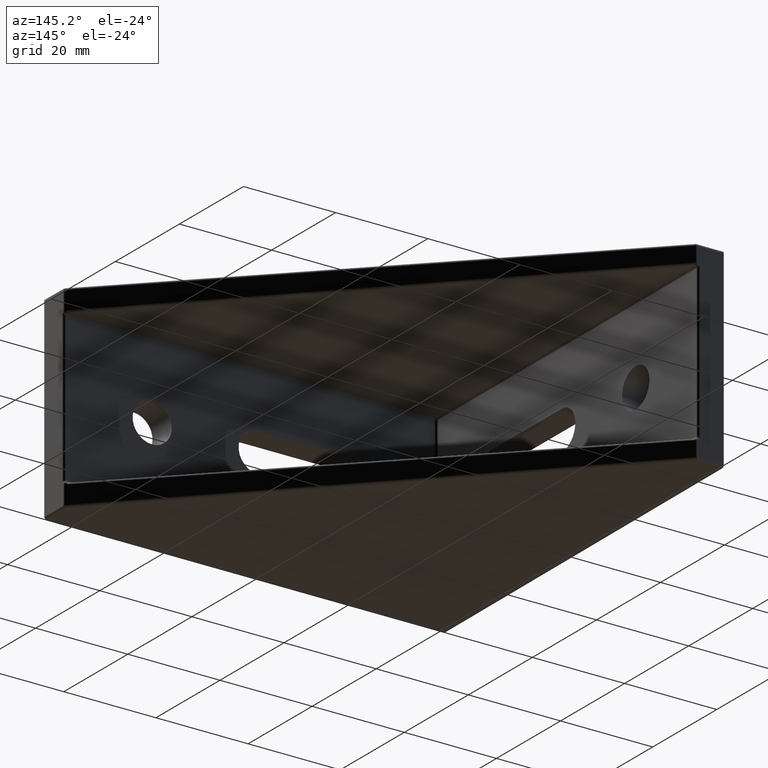
[diagram: clean part render]
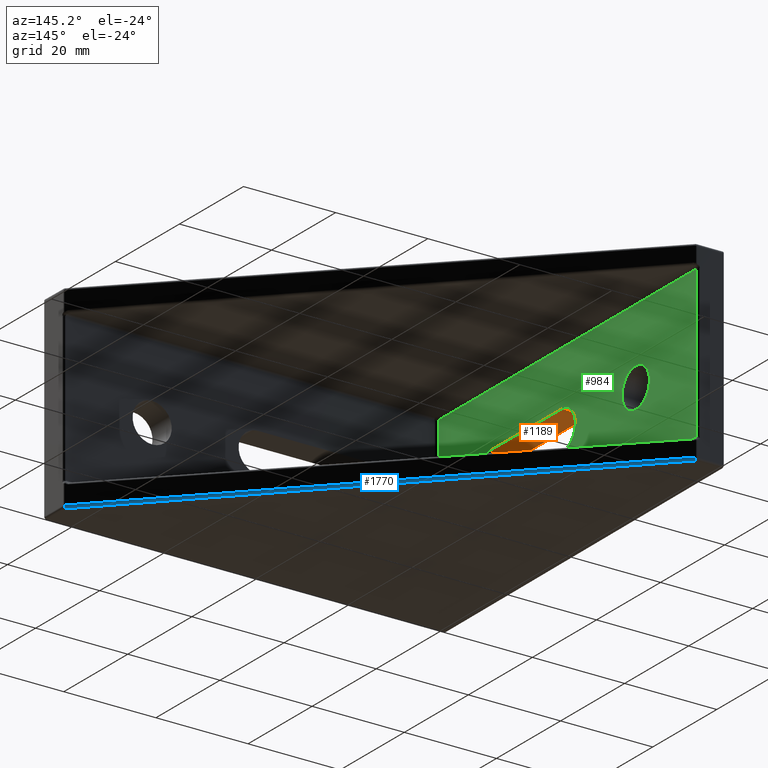
[diagram: same view with three faces highlighted in distinct colors, each labeled with its STEP entity id]
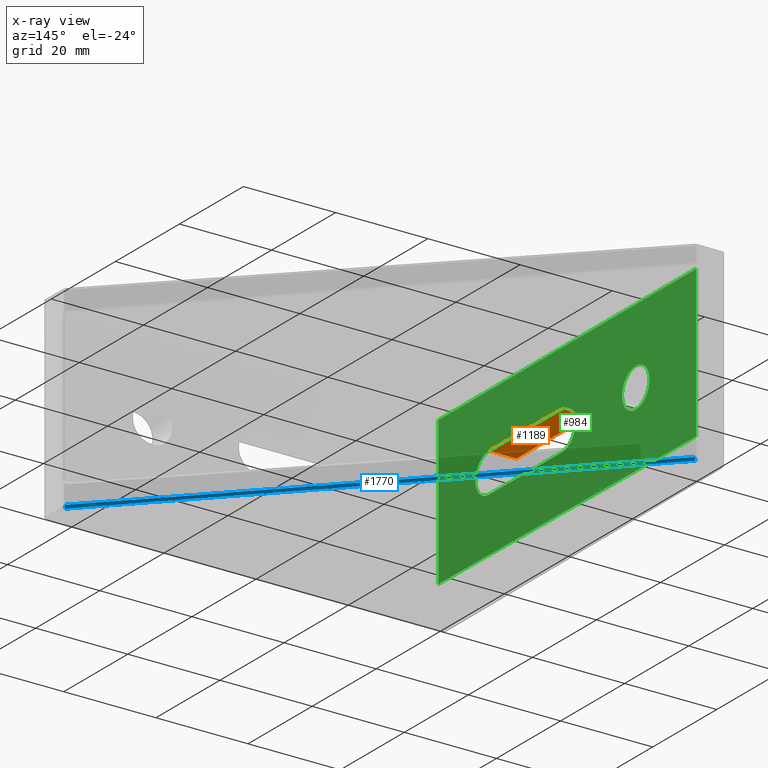
[diagram: x-ray of the same camera — body ghosted, the three highlighted faces saturated]
A machine part, auxiliary view with three faces highlighted in distinct colors.
The next image is the same camera in x-ray (body ghosted, the three faces saturated) — at least one of them is partly hidden behind the body in this view.
Their STEP definitions:

[orange] entity #1189 — the highlighted planar face has unit normal (0, 0, 1).
#517=CARTESIAN_POINT('',(-43.500000000000000,1.249999999999998,4.249999999999997));
#518=VERTEX_POINT('',#517);
#519=CARTESIAN_POINT('',(-43.500000000000000,-21.250000000000000,4.249999999999995));
#520=VERTEX_POINT('',#519);
#521=CARTESIAN_POINT('',(-43.500000000000000,1.249999999999996,4.249999999999995));
#522=DIRECTION('',(0.0,-1.0,0.0));
#523=VECTOR('',#522,22.499999999999996);
#524=LINE('',#521,#523);
#525=EDGE_CURVE('',#518,#520,#524,.T.);
#917=CARTESIAN_POINT('',(-37.570904450836402,-21.250000000000000,4.249999999999995));
#918=VERTEX_POINT('',#917);
#935=CARTESIAN_POINT('',(-37.669079844302175,1.249999999999998,4.249999999999997));
#936=VERTEX_POINT('',#935);
#937=CARTESIAN_POINT('',(-37.669079844302189,1.250000000000007,4.249999999999998));
#938=DIRECTION('',(0.004363309284747,-0.999990480720734,-1.973711E-016));
#939=VECTOR('',#938,22.500214185822376);
#940=LINE('',#937,#939);
#941=EDGE_CURVE('',#936,#918,#940,.T.);
#1164=CARTESIAN_POINT('',(-43.500000000000000,-21.250000000000000,4.249999999999995));
#1165=DIRECTION('',(1.0,0.0,0.0));
#1166=VECTOR('',#1165,5.929095549163598);
#1167=LINE('',#1164,#1166);
#1168=EDGE_CURVE('',#520,#918,#1167,.T.);
#1173=CARTESIAN_POINT('',(-43.796454777458180,2.375000000000007,4.249999999999995));
#1174=DIRECTION('',(0.0,0.0,1.0));
#1175=DIRECTION('',(0.0,-1.0,0.0));
#1176=AXIS2_PLACEMENT_3D('',#1173,#1174,#1175);
#1177=PLANE('',#1176);
#1178=ORIENTED_EDGE('',*,*,#941,.T.);
#1179=ORIENTED_EDGE('',*,*,#1168,.F.);
#1180=ORIENTED_EDGE('',*,*,#525,.F.);
#1181=CARTESIAN_POINT('',(-43.500000000000000,1.249999999999998,4.249999999999997));
#1182=DIRECTION('',(1.0,0.0,0.0));
#1183=VECTOR('',#1182,5.830920155697825);
#1184=LINE('',#1181,#1183);
#1185=EDGE_CURVE('',#518,#936,#1184,.T.);
#1186=ORIENTED_EDGE('',*,*,#1185,.T.);
#1187=EDGE_LOOP('',(#1178,#1179,#1180,#1186));
#1188=FACE_OUTER_BOUND('',#1187,.T.);
#1189=ADVANCED_FACE('',(#1188),#1177,.F.);

[blue] entity #1770 — the highlighted cylindrical surface (edge-blend (fillet) strip) has radius 0.5 mm, axis along (0.7071, -0.7071, -0.0031).
#244=CARTESIAN_POINT('',(43.328161411414577,-37.328161411414527,-20.974608020821314));
#245=VERTEX_POINT('',#244);
#246=CARTESIAN_POINT('',(-37.353553390593284,43.353553390593277,-20.622565394324365));
#247=VERTEX_POINT('',#246);
#248=CARTESIAN_POINT('',(43.328161411414555,-37.328161411414555,-20.974608020821318));
#249=DIRECTION('',(-0.707103415589059,0.707103415589059,0.003085340268731));
#250=VECTOR('',#249,114.101718395455960);
#251=LINE('',#248,#250);
#252=EDGE_CURVE('',#245,#247,#251,.T.);
#790=CARTESIAN_POINT('',(-37.707106781186560,43.002181654642371,-21.122560634684731));
#791=VERTEX_POINT('',#790);
#798=CARTESIAN_POINT('',(42.974608020821321,-37.679533147365454,-21.474603261181688));
#799=VERTEX_POINT('',#798);
#800=CARTESIAN_POINT('',(-37.707106781186539,43.002181654642385,-21.122560634684742));
#801=DIRECTION('',(0.707103415589059,-0.707103415589059,-0.003085340268731));
#802=VECTOR('',#801,114.101718395456020);
#803=LINE('',#800,#802);
#804=EDGE_CURVE('',#791,#799,#803,.T.);
#1747=CARTESIAN_POINT('',(-37.707106788257605,43.000000007071051,-20.622565394293524));
#1748=DIRECTION('',(0.707103415589059,-0.707103415589059,-0.003085340268731));
#1749=DIRECTION('',(-0.499230448883769,-0.502311025835934,0.706011750773995));
#1750=AXIS2_PLACEMENT_3D('',#1747,#1748,#1749);
#1751=CYLINDRICAL_SURFACE('',#1750,0.499999999999998);
#1752=ORIENTED_EDGE('',*,*,#804,.F.);
#1753=CARTESIAN_POINT('',(-37.707106781186567,43.000000000000007,-20.622565394324369));
#1754=DIRECTION('',(0.707103415589059,-0.707103415589059,-0.003085340268731));
#1755=DIRECTION('',(0.707106781186547,0.707106781186548,1.027625E-018));
#1756=AXIS2_PLACEMENT_3D('',#1753,#1754,#1755);
#1757=CIRCLE('',#1756,0.499999999999998);
#1758=EDGE_CURVE('',#791,#247,#1757,.T.);
#1759=ORIENTED_EDGE('',*,*,#1758,.T.);
#1760=ORIENTED_EDGE('',*,*,#252,.F.);
#1761=CARTESIAN_POINT('',(42.974608020821321,-37.681714802007846,-20.974608020821318));
#1762=DIRECTION('',(-0.707103415589059,0.707103415589059,0.003085340268731));
#1763=DIRECTION('',(0.707106781186547,0.707106781186548,1.027625E-018));
#1764=AXIS2_PLACEMENT_3D('',#1761,#1762,#1763);
#1765=CIRCLE('',#1764,0.499999999999998);
#1766=EDGE_CURVE('',#245,#799,#1765,.T.);
#1767=ORIENTED_EDGE('',*,*,#1766,.T.);
#1768=EDGE_LOOP('',(#1752,#1759,#1760,#1767));
#1769=FACE_OUTER_BOUND('',#1768,.T.);
#1770=ADVANCED_FACE('',(#1769),#1751,.T.);

[green] entity #984 — the highlighted planar face has unit normal (1, 0.0044, 0).
#97=CARTESIAN_POINT('',(-37.851259260391046,43.002181654642371,-16.351264020030690));
#98=VERTEX_POINT('',#97);
#164=CARTESIAN_POINT('',(-37.769436913178318,24.250000000000000,4.250000000000000));
#165=VERTEX_POINT('',#164);
#172=CARTESIAN_POINT('',(-37.769436913178318,24.250000000000000,-4.250000000000000));
#173=VERTEX_POINT('',#172);
#174=CARTESIAN_POINT('',(-37.769436913178318,24.250000000000000,4.250000000000000));
#175=CARTESIAN_POINT('',(-37.732348431202368,15.750000000000007,4.250000000000002));
#176=CARTESIAN_POINT('',(-37.732348431202368,15.750000000000007,-4.249999999999998));
#177=CARTESIAN_POINT('',(-37.769436913178318,24.250000000000000,-4.250000000000000));
#185=(BOUNDED_CURVE()B_SPLINE_CURVE(3,(#174,#175,#176,#177),.UNSPECIFIED.,.F.,.U.)B_SPLINE_CURVE_WITH_KNOTS((4,4),(4.712388980384691,7.853981633974483),.UNSPECIFIED.)CURVE()GEOMETRIC_REPRESENTATION_ITEM()RATIONAL_B_SPLINE_CURVE((1.0,0.333333333333333,0.333333333333333,1.0))REPRESENTATION_ITEM(''));
#186=EDGE_CURVE('',#165,#173,#185,.T.);
#880=CARTESIAN_POINT('',(-37.484717800870513,-41.002399820106618,-17.986390422033757));
#881=DIRECTION('',(0.999990480720734,0.004363309284747,0.0));
#882=DIRECTION('',(-0.004363309284747,0.999990480720734,0.0));
#883=AXIS2_PLACEMENT_3D('',#880,#881,#882);
#884=PLANE('',#883);
#885=CARTESIAN_POINT('',(-37.502172156085770,-37.002181654642371,-16.002176915725407));
#886=VERTEX_POINT('',#885);
#887=CARTESIAN_POINT('',(-37.502172156085784,-37.002181654642364,-16.002176915725411));
#888=DIRECTION('',(-0.004363267749978,0.999980961713314,-0.004363267749978));
#889=VECTOR('',#888,80.005886484288212);
#890=LINE('',#887,#889);
#891=EDGE_CURVE('',#886,#98,#890,.T.);
#892=ORIENTED_EDGE('',*,*,#891,.T.);
#893=CARTESIAN_POINT('',(-37.851259260391046,43.002181654642392,16.351264020030683));
#894=VERTEX_POINT('',#893);
#895=CARTESIAN_POINT('',(-37.851259260391046,43.002181654642371,-16.351264020030690));
#896=DIRECTION('',(0.0,0.0,1.0));
#897=VECTOR('',#896,32.702528040061374);
#898=LINE('',#895,#897);
#899=EDGE_CURVE('',#98,#894,#898,.T.);
#900=ORIENTED_EDGE('',*,*,#899,.T.);
#901=CARTESIAN_POINT('',(-37.502172156085770,-37.002181654642371,16.002176915725407));
#902=VERTEX_POINT('',#901);
#903=CARTESIAN_POINT('',(-37.851259260391039,43.002181654642406,16.351264020030683));
#904=DIRECTION('',(0.004363267749978,-0.999980961713314,-0.004363267749978));
#905=VECTOR('',#904,80.005886484288240);
#906=LINE('',#903,#905);
#907=EDGE_CURVE('',#894,#902,#906,.T.);
#908=ORIENTED_EDGE('',*,*,#907,.T.);
#909=CARTESIAN_POINT('',(-37.502172156085770,-37.002181654642371,16.002176915725407));
#910=DIRECTION('',(0.0,0.0,-1.0));
#911=VECTOR('',#910,32.004353831450814);
#912=LINE('',#909,#911);
#913=EDGE_CURVE('',#902,#886,#912,.T.);
#914=ORIENTED_EDGE('',*,*,#913,.T.);
#915=EDGE_LOOP('',(#892,#900,#908,#914));
#916=FACE_OUTER_BOUND('',#915,.T.);
#917=CARTESIAN_POINT('',(-37.570904450836402,-21.250000000000000,4.249999999999995));
#918=VERTEX_POINT('',#917);
#919=CARTESIAN_POINT('',(-37.570904450836402,-21.250000000000000,-4.250000000000009));
#920=VERTEX_POINT('',#919);
#921=CARTESIAN_POINT('',(-37.570904450836402,-21.250000000000000,4.249999999999995));
#922=CARTESIAN_POINT('',(-37.533815968860452,-29.750000000000014,4.249999999999988));
#923=CARTESIAN_POINT('',(-37.533815968860452,-29.749999999999993,-4.250000000000007));
#924=CARTESIAN_POINT('',(-37.570904450836402,-21.250000000000000,-4.250000000000009));
#932=(BOUNDED_CURVE()B_SPLINE_CURVE(3,(#921,#922,#923,#924),.UNSPECIFIED.,.F.,.U.)B_SPLINE_CURVE_WITH_KNOTS((4,4),(4.712388980384691,7.853981633974483),.UNSPECIFIED.)CURVE()GEOMETRIC_REPRESENTATION_ITEM()RATIONAL_B_SPLINE_CURVE((1.0,0.333333333333334,0.333333333333334,1.0))REPRESENTATION_ITEM(''));
#933=EDGE_CURVE('',#918,#920,#932,.T.);
#934=ORIENTED_EDGE('',*,*,#933,.F.);
#935=CARTESIAN_POINT('',(-37.669079844302175,1.249999999999998,4.249999999999997));
#936=VERTEX_POINT('',#935);
#937=CARTESIAN_POINT('',(-37.669079844302189,1.250000000000007,4.249999999999998));
#938=DIRECTION('',(0.004363309284747,-0.999990480720734,-1.973711E-016));
#939=VECTOR('',#938,22.500214185822376);
#940=LINE('',#937,#939);
#941=EDGE_CURVE('',#936,#918,#940,.T.);
#942=ORIENTED_EDGE('',*,*,#941,.F.);
#943=CARTESIAN_POINT('',(-37.669079844302175,1.250000000000001,-4.250000000000005));
#944=VERTEX_POINT('',#943);
#945=CARTESIAN_POINT('',(-37.669079844302175,1.250000000000001,-4.250000000000005));
#946=CARTESIAN_POINT('',(-37.706168326278153,9.750000000000011,-4.250000000000007));
#947=CARTESIAN_POINT('',(-37.706168326278153,9.750000000000011,4.250000000000004));
#948=CARTESIAN_POINT('',(-37.669079844302175,1.249999999999998,4.249999999999997));
#956=(BOUNDED_CURVE()B_SPLINE_CURVE(3,(#945,#946,#947,#948),.UNSPECIFIED.,.F.,.U.)B_SPLINE_CURVE_WITH_KNOTS((4,4),(1.570796326794897,4.712388980384691),.UNSPECIFIED.)CURVE()GEOMETRIC_REPRESENTATION_ITEM()RATIONAL_B_SPLINE_CURVE((1.0,0.333333333333333,0.333333333333333,1.0))REPRESENTATION_ITEM(''));
#957=EDGE_CURVE('',#944,#936,#956,.T.);
#958=ORIENTED_EDGE('',*,*,#957,.F.);
#959=CARTESIAN_POINT('',(-37.570904450836402,-21.249999999999996,-4.250000000000008));
#960=DIRECTION('',(-0.004363309284747,0.999990480720734,1.184227E-016));
#961=VECTOR('',#960,22.500214185822365);
#962=LINE('',#959,#961);
#963=EDGE_CURVE('',#920,#944,#962,.T.);
#964=ORIENTED_EDGE('',*,*,#963,.F.);
#965=EDGE_LOOP('',(#934,#942,#958,#964));
#966=FACE_BOUND('',#965,.T.);
#967=CARTESIAN_POINT('',(-37.769436913178318,24.250000000000000,-4.250000000000000));
#968=CARTESIAN_POINT('',(-37.806525395154281,32.750000000000000,-4.250000000000002));
#969=CARTESIAN_POINT('',(-37.806525395154281,32.750000000000000,4.249999999999998));
#970=CARTESIAN_POINT('',(-37.769436913178318,24.250000000000000,4.250000000000000));
#978=(BOUNDED_CURVE()B_SPLINE_CURVE(3,(#967,#968,#969,#970),.UNSPECIFIED.,.F.,.U.)B_SPLINE_CURVE_WITH_KNOTS((4,4),(1.570796326794897,4.712388980384691),.UNSPECIFIED.)CURVE()GEOMETRIC_REPRESENTATION_ITEM()RATIONAL_B_SPLINE_CURVE((1.0,0.333333333333333,0.333333333333333,1.0))REPRESENTATION_ITEM(''));
#979=EDGE_CURVE('',#173,#165,#978,.T.);
#980=ORIENTED_EDGE('',*,*,#979,.F.);
#981=ORIENTED_EDGE('',*,*,#186,.F.);
#982=EDGE_LOOP('',(#980,#981));
#983=FACE_BOUND('',#982,.T.);
#984=ADVANCED_FACE('',(#916,#966,#983),#884,.T.);